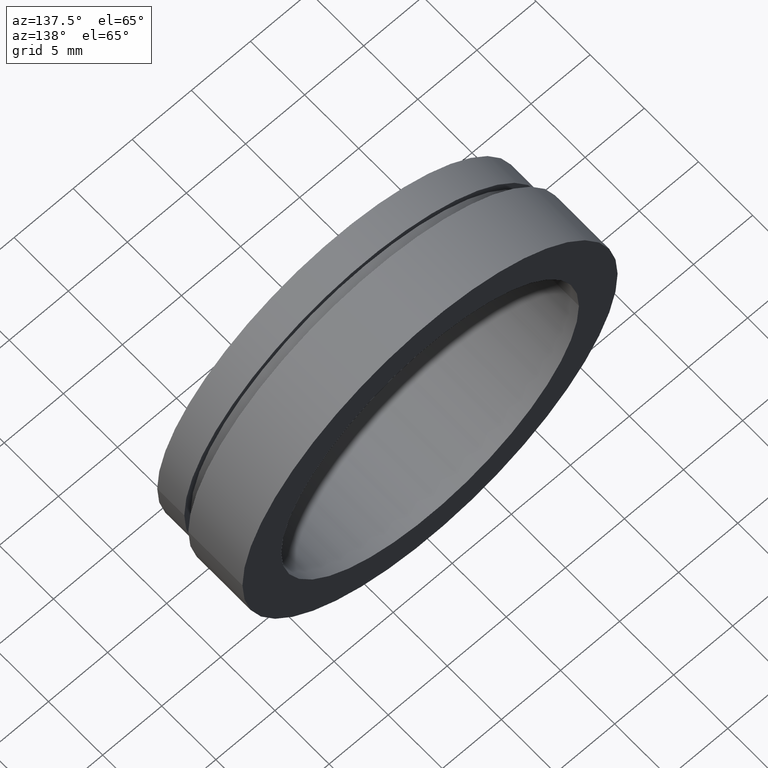
[diagram: clean part render]
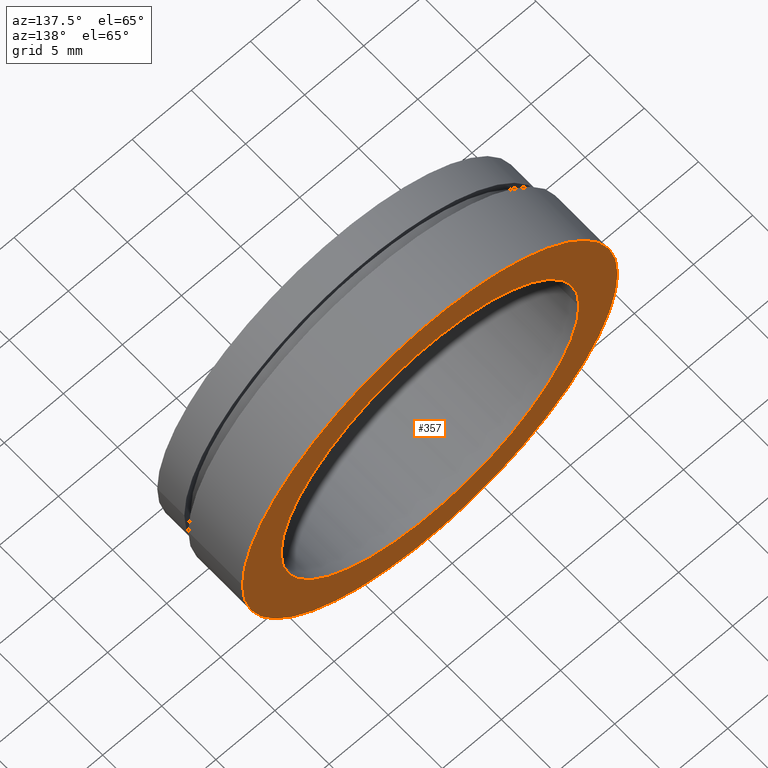
[diagram: same view with one face highlighted and labeled with its STEP entity id]
A machine part, auxiliary view. The second image highlights one B-rep face of the part: STEP entity #357.
In plain terms, the highlighted planar face has unit normal (0, -1, 0).
Its self-contained STEP definition (entity closure, byte-faithful):
#1 = DIRECTION ( 'NONE',  ( -1.000000000000000000, -1.092739197465705300E-016, 0.0000000000000000000 ) ) ;
#23 = CARTESIAN_POINT ( 'NONE',  ( 1.093791163676037000E-015, 7.954535588880333700, 0.0000000000000000000 ) ) ;
#28 = AXIS2_PLACEMENT_3D ( 'NONE', #64, #294, #1 ) ;
#37 = CARTESIAN_POINT ( 'NONE',  ( 15.87500000000000000, 7.954535588880335500, 1.944126793646423200E-015 ) ) ;
#41 = AXIS2_PLACEMENT_3D ( 'NONE', #377, #83, #417 ) ;
#53 = EDGE_CURVE ( 'NONE', #297, #159, #59, .T. ) ;
#55 = FACE_BOUND ( 'NONE', #344, .T. ) ;
#59 = CIRCLE ( 'NONE', #28, 15.87500000000000000 ) ;
#64 = CARTESIAN_POINT ( 'NONE',  ( 1.093791163676037000E-015, 7.954535588880333700, 0.0000000000000000000 ) ) ;
#83 = DIRECTION ( 'NONE',  ( -1.224646799147351000E-016, 1.000000000000000000, -0.0000000000000000000 ) ) ;
#88 = DIRECTION ( 'NONE',  ( -1.000000000000000000, -1.092739197465705300E-016, 0.0000000000000000000 ) ) ;
#105 = PLANE ( 'NONE',  #198 ) ;
#116 = CARTESIAN_POINT ( 'NONE',  ( -15.87500000000000000, 7.954535588880332000, 0.0000000000000000000 ) ) ;
#122 = EDGE_LOOP ( 'NONE', ( #322, #305 ) ) ;
#141 = EDGE_CURVE ( 'NONE', #213, #400, #358, .T. ) ;
#159 = VERTEX_POINT ( 'NONE', #116 ) ;
#191 = EDGE_CURVE ( 'NONE', #159, #297, #361, .T. ) ;
#193 = DIRECTION ( 'NONE',  ( -1.000000000000000000, -1.376764663473656200E-016, 0.0000000000000000000 ) ) ;
#198 = AXIS2_PLACEMENT_3D ( 'NONE', #304, #365, #420 ) ;
#212 = CIRCLE ( 'NONE', #41, 12.60000000000000100 ) ;
#213 = VERTEX_POINT ( 'NONE', #378 ) ;
#240 = FACE_OUTER_BOUND ( 'NONE', #122, .T. ) ;
#278 = CARTESIAN_POINT ( 'NONE',  ( -12.60000000000000000, 7.954535588880332000, 0.0000000000000000000 ) ) ;
#294 = DIRECTION ( 'NONE',  ( -1.224646799147351000E-016, 1.000000000000000000, -0.0000000000000000000 ) ) ;
#297 = VERTEX_POINT ( 'NONE', #37 ) ;
#304 = CARTESIAN_POINT ( 'NONE',  ( 12.60000000000000300, 7.954535588880335500, 0.0000000000000000000 ) ) ;
#305 = ORIENTED_EDGE ( 'NONE', *, *, #53, .T. ) ;
#309 = AXIS2_PLACEMENT_3D ( 'NONE', #419, #382, #193 ) ;
#321 = ORIENTED_EDGE ( 'NONE', *, *, #401, .F. ) ;
#322 = ORIENTED_EDGE ( 'NONE', *, *, #191, .T. ) ;
#344 = EDGE_LOOP ( 'NONE', ( #321, #392 ) ) ;
#348 = DIRECTION ( 'NONE',  ( -1.224646799147351000E-016, 1.000000000000000000, -0.0000000000000000000 ) ) ;
#357 = ADVANCED_FACE ( 'NONE', ( #55, #240 ), #105, .F. ) ;
#358 = CIRCLE ( 'NONE', #309, 12.60000000000000100 ) ;
#361 = CIRCLE ( 'NONE', #394, 15.87500000000000000 ) ;
#365 = DIRECTION ( 'NONE',  ( 1.224646799147351000E-016, -1.000000000000000000, 0.0000000000000000000 ) ) ;
#377 = CARTESIAN_POINT ( 'NONE',  ( 1.093791163676037000E-015, 7.954535588880333700, 0.0000000000000000000 ) ) ;
#378 = CARTESIAN_POINT ( 'NONE',  ( 12.60000000000000300, 7.954535588880335500, 1.543054966925665300E-015 ) ) ;
#382 = DIRECTION ( 'NONE',  ( -1.224646799147351000E-016, 1.000000000000000000, -0.0000000000000000000 ) ) ;
#392 = ORIENTED_EDGE ( 'NONE', *, *, #141, .F. ) ;
#394 = AXIS2_PLACEMENT_3D ( 'NONE', #23, #348, #88 ) ;
#400 = VERTEX_POINT ( 'NONE', #278 ) ;
#401 = EDGE_CURVE ( 'NONE', #400, #213, #212, .T. ) ;
#417 = DIRECTION ( 'NONE',  ( -1.000000000000000000, -1.376764663473656200E-016, 0.0000000000000000000 ) ) ;
#419 = CARTESIAN_POINT ( 'NONE',  ( 1.093791163676037000E-015, 7.954535588880333700, 0.0000000000000000000 ) ) ;
#420 = DIRECTION ( 'NONE',  ( 1.000000000000000000, 1.224646799147351000E-016, 0.0000000000000000000 ) ) ;